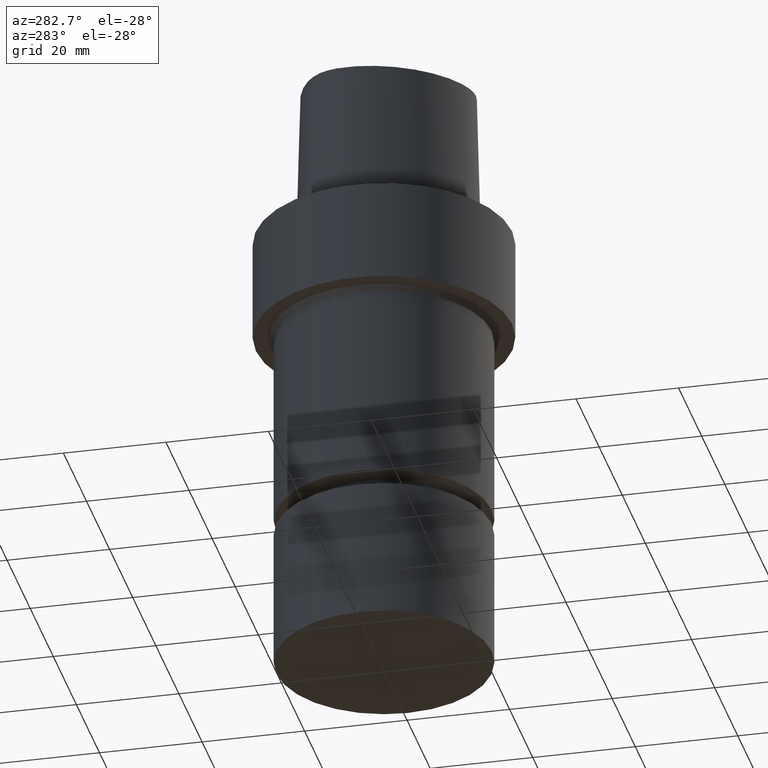
[diagram: clean part render]
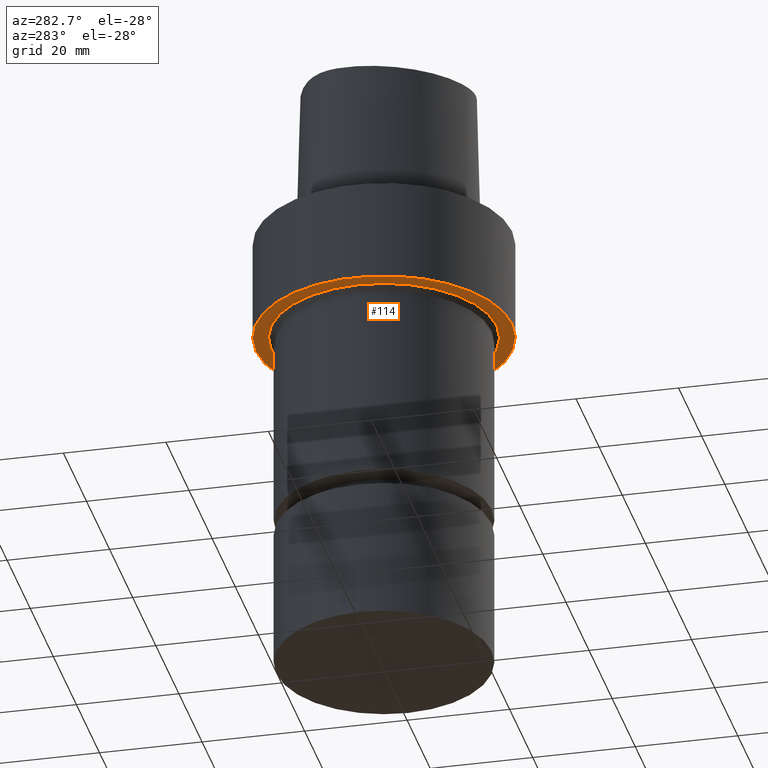
[diagram: same view with one face highlighted and labeled with its STEP entity id]
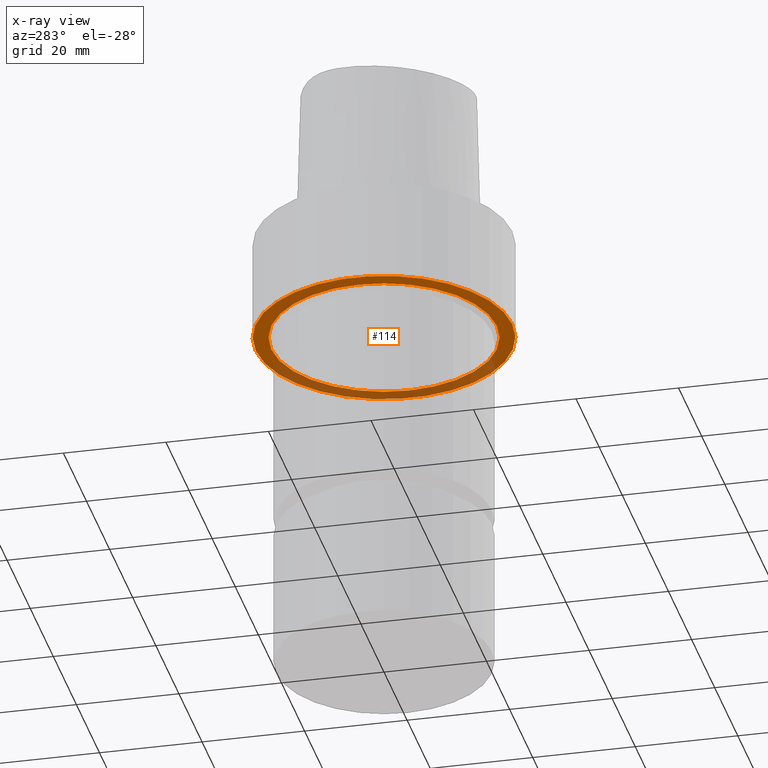
[diagram: x-ray of the same camera — body ghosted, the highlighted face saturated]
A machine part, auxiliary view. The second image highlights one B-rep face of the part: STEP entity #114.
The next image is the same camera in x-ray: the body ghosted, the highlighted face saturated — about 35% of this face is hidden behind the body in this view.
In plain terms, the highlighted planar face has unit normal (0, 0, -1).
Its self-contained STEP definition (entity closure, byte-faithful):
#114=ADVANCED_FACE('Unnamed[1]',(#241,#242),#243,.T.);
#129=EDGE_CURVE('Unnamed[1]',#262,#262,#263,.T.);
#146=EDGE_CURVE('Unnamed[1]',#288,#288,#289,.T.);
#241=FACE_BOUND('',#493,.T.);
#242=FACE_OUTER_BOUND('',#494,.T.);
#243=PLANE('',#495);
#262=VERTEX_POINT('',#950);
#263=CIRCLE('',#951,25.0);
#288=VERTEX_POINT('',#983);
#289=CIRCLE('',#984,22.0000000000003);
#493=EDGE_LOOP('',(#1064));
#494=EDGE_LOOP('',(#1065));
#495=AXIS2_PLACEMENT_3D('',#1066,#1067,#1068);
#950=CARTESIAN_POINT('',(1.22464679914735E-015,25.0,-20.0));
#951=AXIS2_PLACEMENT_3D('',#1084,#1085,#1086);
#983=CARTESIAN_POINT('',(1.22464679914735E-015,22.0000000000003,-20.0));
#984=AXIS2_PLACEMENT_3D('',#1113,#1114,#1115);
#1064=ORIENTED_EDGE('',*,*,#146,.F.);
#1065=ORIENTED_EDGE('',*,*,#129,.T.);
#1066=CARTESIAN_POINT('',(1.22464679914735E-015,23.5000000000002,-20.0));
#1067=DIRECTION('',(6.12323399573677E-017,1.22464679914735E-016,-1.0));
#1068=DIRECTION('',(-1.23259516440783E-032,1.0,1.22464679914735E-016));
#1084=CARTESIAN_POINT('',(1.22464679914735E-015,2.44929359829471E-015,-20.0));
#1085=DIRECTION('',(6.12323399573677E-017,1.22464679914735E-016,-1.0));
#1086=DIRECTION('',(-1.23259516440783E-032,1.0,1.22464679914735E-016));
#1113=CARTESIAN_POINT('',(1.22464679914735E-015,2.44929359829471E-015,-20.0));
#1114=DIRECTION('',(6.12323399573677E-017,1.22464679914735E-016,-1.0));
#1115=DIRECTION('',(-1.23259516440783E-032,1.0,1.22464679914735E-016));